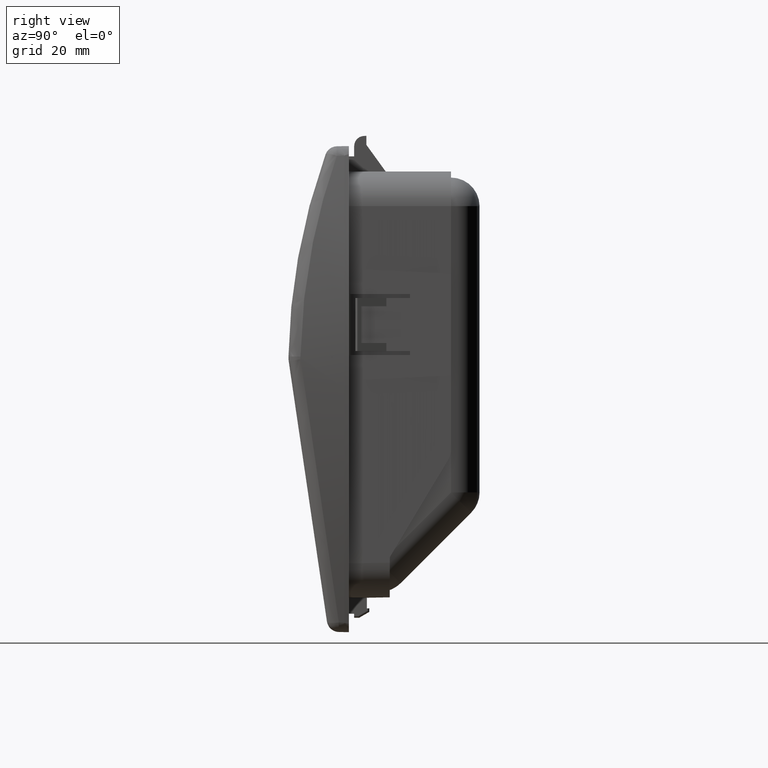
[diagram: clean part render]
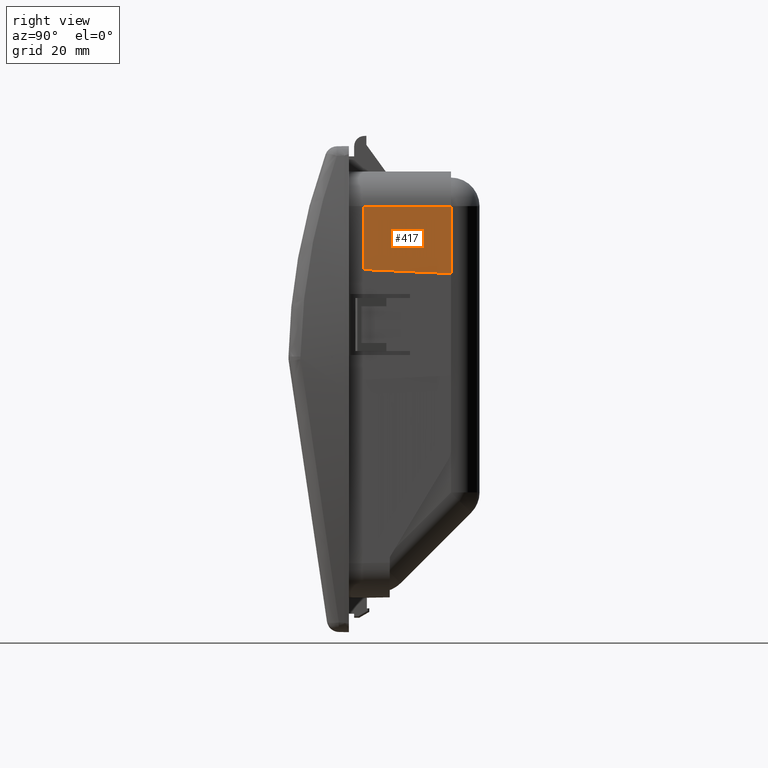
[diagram: same view with one face highlighted and labeled with its STEP entity id]
A machine part, right view. The second image highlights one B-rep face of the part: STEP entity #417.
In plain terms, the highlighted planar face has unit normal (0.9998, 0.0175, 0).
Its self-contained STEP definition (entity closure, byte-faithful):
#417=ADVANCED_FACE('',(#3541),#3540,.T.);
#3540=PLANE('',#10813);
#3541=FACE_OUTER_BOUND('',#10814,.T.);
#10810=CARTESIAN_POINT('',(-1.45612816102E+02,1.35000000005E+00,4.64499999994E+01));
#10811=DIRECTION('',(9.99847695156E-01,1.74524064382E-02,0.00000000000E+00));
#10812=DIRECTION('',(0.00000000000E+00,0.00000000000E+00,-1.00000000000E+00));
#10813=AXIS2_PLACEMENT_3D('',#10810,#10811,#10812);
#10814=EDGE_LOOP('',(#17688,#17689,#17690,#17691));
#17688=ORIENTED_EDGE('',*,*,#20674,.F.);
#17689=ORIENTED_EDGE('',*,*,#20617,.F.);
#17690=ORIENTED_EDGE('',*,*,#20646,.T.);
#17691=ORIENTED_EDGE('',*,*,#20524,.F.);
#20524=EDGE_CURVE('',#25941,#25961,#25962,.T.);
#20617=EDGE_CURVE('',#26574,#26575,#26576,.T.);
#20646=EDGE_CURVE('',#26574,#25961,#26766,.T.);
#20674=EDGE_CURVE('',#26575,#25941,#26943,.T.);
#25941=VERTEX_POINT('',#36493);
#25961=VERTEX_POINT('',#36504);
#25962=LINE('',#36505,#36506);
#26574=VERTEX_POINT('',#36844);
#26575=VERTEX_POINT('',#36845);
#26576=LINE('',#36846,#36847);
#26766=LINE('',#36950,#36951);
#26943=LINE('',#37046,#37047);
#36493=CARTESIAN_POINT('',(-1.45650344491E+02,3.50000000091E+00,4.47999999995E+01));
#36504=CARTESIAN_POINT('',(-1.46025628387E+02,2.50000000000E+01,4.47999999995E+01));
#36505=CARTESIAN_POINT('',(-1.45650344491E+02,3.50000000091E+00,4.47999999995E+01));
#36506=VECTOR('',#36507,2.15032750520E+01);
#36507=DIRECTION('',(-1.74524064382E-02,9.99847695156E-01,0.00000000000E+00));
#36844=CARTESIAN_POINT('',(-1.46025628387E+02,2.50000000000E+01,2.83000000000E+01));
#36845=CARTESIAN_POINT('',(-1.45650344491E+02,3.50000000005E+00,2.93000000000E+01));
#36846=CARTESIAN_POINT('',(-1.46025628387E+02,2.50000000000E+01,2.83000000000E+01));
#36847=VECTOR('',#36848,2.15265147667E+01);
#36848=DIRECTION('',(1.74335650728E-02,-9.98768274055E-01,4.64543383268E-02));
#36950=CARTESIAN_POINT('',(-1.46025628387E+02,2.50000000000E+01,2.83000000000E+01));
#36951=VECTOR('',#36952,1.64999999994E+01);
#36952=DIRECTION('',(0.00000000000E+00,0.00000000000E+00,1.00000000000E+00));
#37046=CARTESIAN_POINT('',(-1.45650344491E+02,3.50000000091E+00,2.93000000000E+01));
#37047=VECTOR('',#37048,1.54999999994E+01);
#37048=DIRECTION('',(0.00000000000E+00,0.00000000000E+00,1.00000000000E+00));